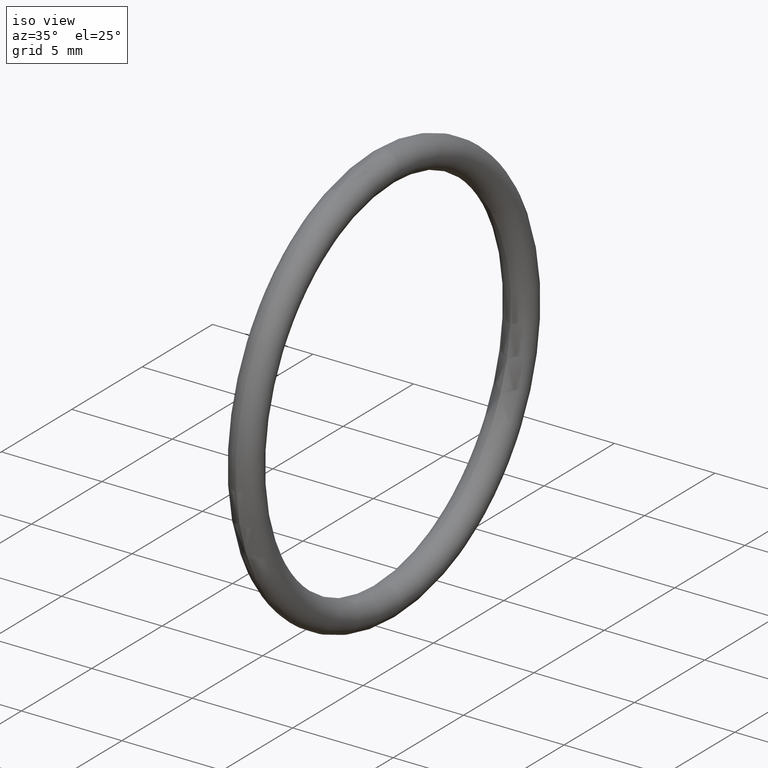
[diagram: clean part render]
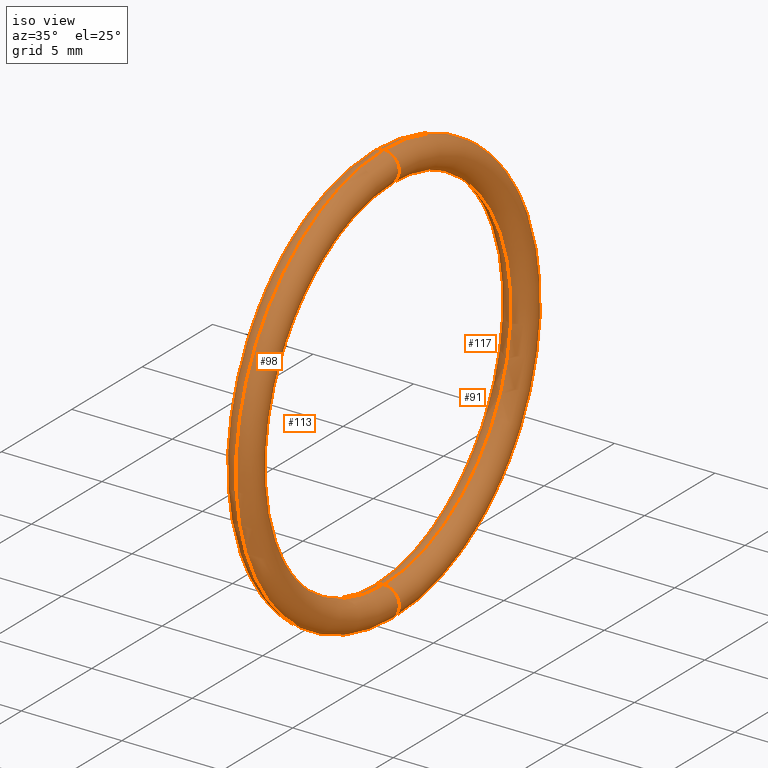
[diagram: same view with one multi-face feature highlighted, each face labeled with its STEP entity id]
A machine part, iso view. The highlighted faces form ONE feature: a constant-radius fillet chain: 4 tangent blend faces with common blend radius 0.762 mm. The faces share edges in the B-rep.
Their STEP definitions:
[1] entity #98 (Torus):
#60 = AXIS2_PLACEMENT_3D ( 'NONE', #63, #61, #62 ) ;
#61 = DIRECTION ( 'NONE',  ( 0.0000000000000000000, 1.000000000000000000, 1.224646799147353200E-016 ) ) ;
#62 = DIRECTION ( 'NONE',  ( 0.0000000000000000000, -1.224646799147352200E-016, 1.000000000000000000 ) ) ;
#63 = CARTESIAN_POINT ( 'NONE',  ( 0.1000000000000000600, 4.714890176717309300E-017, -0.3850000000000000100 ) ) ;
#83 = EDGE_CURVE ( 'NONE', #84, #85, #120, .T. ) ;
#84 = VERTEX_POINT ( 'NONE', #149 ) ;
#85 = VERTEX_POINT ( 'NONE', #163 ) ;
#86 = ORIENTED_EDGE ( 'NONE', *, *, #87, .T. ) ;
#87 = EDGE_CURVE ( 'NONE', #107, #88, #150, .T. ) ;
#88 = VERTEX_POINT ( 'NONE', #167 ) ;
#89 = ORIENTED_EDGE ( 'NONE', *, *, #90, .F. ) ;
#90 = EDGE_CURVE ( 'NONE', #85, #88, #161, .T. ) ;
#98 = ADVANCED_FACE ( 'NONE', ( #174 ), #141, .T. ) ;
#99 = ORIENTED_EDGE ( 'NONE', *, *, #83, .F. ) ;
#104 = EDGE_LOOP ( 'NONE', ( #99, #105, #86, #89 ) ) ;
#105 = ORIENTED_EDGE ( 'NONE', *, *, #106, .T. ) ;
#106 = EDGE_CURVE ( 'NONE', #84, #107, #182, .T. ) ;
#107 = VERTEX_POINT ( 'NONE', #136 ) ;
#120 = CIRCLE ( 'NONE', #60, 0.03000000000000002300 ) ;
#121 = CARTESIAN_POINT ( 'NONE',  ( 0.1000000000000000600, 0.0000000000000000000, 0.3850000000000000100 ) ) ;
#122 = AXIS2_PLACEMENT_3D ( 'NONE', #121, #124, #123 ) ;
#123 = DIRECTION ( 'NONE',  ( 0.0000000000000000000, 0.0000000000000000000, -1.000000000000000000 ) ) ;
#124 = DIRECTION ( 'NONE',  ( 0.0000000000000000000, -1.000000000000000000, 0.0000000000000000000 ) ) ;
#125 = DIRECTION ( 'NONE',  ( -1.000000000000000000, 0.0000000000000000000, 0.0000000000000000000 ) ) ;
#126 = CARTESIAN_POINT ( 'NONE',  ( 0.1000000000000000600, 0.0000000000000000000, 0.0000000000000000000 ) ) ;
#127 = AXIS2_PLACEMENT_3D ( 'NONE', #126, #125, #169 ) ;
#136 = CARTESIAN_POINT ( 'NONE',  ( 0.1000000000000000600, 0.0000000000000000000, 0.4150000000000000400 ) ) ;
#137 = DIRECTION ( 'NONE',  ( 0.0000000000000000000, 0.0000000000000000000, 1.000000000000000000 ) ) ;
#138 = DIRECTION ( 'NONE',  ( -1.000000000000000000, 0.0000000000000000000, 0.0000000000000000000 ) ) ;
#139 = DIRECTION ( 'NONE',  ( 0.0000000000000000000, 0.0000000000000000000, 1.000000000000000000 ) ) ;
#140 = AXIS2_PLACEMENT_3D ( 'NONE', #164, #165, #139 ) ;
#141 = TOROIDAL_SURFACE ( 'NONE', #140, 0.3850000000000000100, 0.03000000000000000900 ) ;
#149 = CARTESIAN_POINT ( 'NONE',  ( 0.1000000000000000600, 5.082284216461516300E-017, -0.4150000000000000400 ) ) ;
#150 = CIRCLE ( 'NONE', #122, 0.03000000000000002300 ) ;
#161 = CIRCLE ( 'NONE', #127, 0.3549999999999999800 ) ;
#163 = CARTESIAN_POINT ( 'NONE',  ( 0.1000000000000000600, 4.347496136973103500E-017, -0.3549999999999999800 ) ) ;
#164 = CARTESIAN_POINT ( 'NONE',  ( 0.1000000000000000600, 0.0000000000000000000, 0.0000000000000000000 ) ) ;
#165 = DIRECTION ( 'NONE',  ( -1.000000000000000000, 0.0000000000000000000, 0.0000000000000000000 ) ) ;
#167 = CARTESIAN_POINT ( 'NONE',  ( 0.1000000000000000600, 0.0000000000000000000, 0.3549999999999999800 ) ) ;
#169 = DIRECTION ( 'NONE',  ( 0.0000000000000000000, 0.0000000000000000000, 1.000000000000000000 ) ) ;
#174 = FACE_OUTER_BOUND ( 'NONE', #104, .T. ) ;
#180 = CARTESIAN_POINT ( 'NONE',  ( 0.1000000000000000600, 0.0000000000000000000, 0.0000000000000000000 ) ) ;
#181 = AXIS2_PLACEMENT_3D ( 'NONE', #180, #138, #137 ) ;
#182 = CIRCLE ( 'NONE', #181, 0.4150000000000000400 ) ;
[2] entity #113 (Torus):
#84 = VERTEX_POINT ( 'NONE', #149 ) ;
#85 = VERTEX_POINT ( 'NONE', #163 ) ;
#88 = VERTEX_POINT ( 'NONE', #167 ) ;
#90 = EDGE_CURVE ( 'NONE', #85, #88, #161, .T. ) ;
#95 = EDGE_CURVE ( 'NONE', #88, #107, #148, .T. ) ;
#100 = ORIENTED_EDGE ( 'NONE', *, *, #111, .F. ) ;
#101 = ORIENTED_EDGE ( 'NONE', *, *, #90, .T. ) ;
#103 = EDGE_LOOP ( 'NONE', ( #114, #100, #101, #112 ) ) ;
#106 = EDGE_CURVE ( 'NONE', #84, #107, #182, .T. ) ;
#107 = VERTEX_POINT ( 'NONE', #136 ) ;
#111 = EDGE_CURVE ( 'NONE', #85, #84, #128, .T. ) ;
#112 = ORIENTED_EDGE ( 'NONE', *, *, #95, .T. ) ;
#113 = ADVANCED_FACE ( 'NONE', ( #129 ), #191, .T. ) ;
#114 = ORIENTED_EDGE ( 'NONE', *, *, #106, .F. ) ;
#125 = DIRECTION ( 'NONE',  ( -1.000000000000000000, 0.0000000000000000000, 0.0000000000000000000 ) ) ;
#126 = CARTESIAN_POINT ( 'NONE',  ( 0.1000000000000000600, 0.0000000000000000000, 0.0000000000000000000 ) ) ;
#127 = AXIS2_PLACEMENT_3D ( 'NONE', #126, #125, #169 ) ;
#128 = CIRCLE ( 'NONE', #160, 0.03000000000000002300 ) ;
#129 = FACE_OUTER_BOUND ( 'NONE', #103, .T. ) ;
#135 = CARTESIAN_POINT ( 'NONE',  ( 0.1000000000000000600, 4.714890176717309300E-017, -0.3850000000000000100 ) ) ;
#136 = CARTESIAN_POINT ( 'NONE',  ( 0.1000000000000000600, 0.0000000000000000000, 0.4150000000000000400 ) ) ;
#137 = DIRECTION ( 'NONE',  ( 0.0000000000000000000, 0.0000000000000000000, 1.000000000000000000 ) ) ;
#138 = DIRECTION ( 'NONE',  ( -1.000000000000000000, 0.0000000000000000000, 0.0000000000000000000 ) ) ;
#142 = DIRECTION ( 'NONE',  ( 0.0000000000000000000, 0.0000000000000000000, -1.000000000000000000 ) ) ;
#143 = DIRECTION ( 'NONE',  ( 0.0000000000000000000, -1.000000000000000000, 0.0000000000000000000 ) ) ;
#147 = AXIS2_PLACEMENT_3D ( 'NONE', #151, #143, #142 ) ;
#148 = CIRCLE ( 'NONE', #147, 0.03000000000000002300 ) ;
#149 = CARTESIAN_POINT ( 'NONE',  ( 0.1000000000000000600, 5.082284216461516300E-017, -0.4150000000000000400 ) ) ;
#151 = CARTESIAN_POINT ( 'NONE',  ( 0.1000000000000000600, 0.0000000000000000000, 0.3850000000000000100 ) ) ;
#155 = CARTESIAN_POINT ( 'NONE',  ( 0.1000000000000000600, 0.0000000000000000000, 0.0000000000000000000 ) ) ;
#157 = DIRECTION ( 'NONE',  ( -1.000000000000000000, 0.0000000000000000000, 0.0000000000000000000 ) ) ;
#158 = DIRECTION ( 'NONE',  ( 0.0000000000000000000, -1.224646799147352200E-016, 1.000000000000000000 ) ) ;
#159 = DIRECTION ( 'NONE',  ( 0.0000000000000000000, 1.000000000000000000, 1.224646799147353200E-016 ) ) ;
#160 = AXIS2_PLACEMENT_3D ( 'NONE', #135, #159, #158 ) ;
#161 = CIRCLE ( 'NONE', #127, 0.3549999999999999800 ) ;
#163 = CARTESIAN_POINT ( 'NONE',  ( 0.1000000000000000600, 4.347496136973103500E-017, -0.3549999999999999800 ) ) ;
#167 = CARTESIAN_POINT ( 'NONE',  ( 0.1000000000000000600, 0.0000000000000000000, 0.3549999999999999800 ) ) ;
#169 = DIRECTION ( 'NONE',  ( 0.0000000000000000000, 0.0000000000000000000, 1.000000000000000000 ) ) ;
#180 = CARTESIAN_POINT ( 'NONE',  ( 0.1000000000000000600, 0.0000000000000000000, 0.0000000000000000000 ) ) ;
#181 = AXIS2_PLACEMENT_3D ( 'NONE', #180, #138, #137 ) ;
#182 = CIRCLE ( 'NONE', #181, 0.4150000000000000400 ) ;
#189 = DIRECTION ( 'NONE',  ( 0.0000000000000000000, 0.0000000000000000000, 1.000000000000000000 ) ) ;
#190 = AXIS2_PLACEMENT_3D ( 'NONE', #155, #157, #189 ) ;
#191 = TOROIDAL_SURFACE ( 'NONE', #190, 0.3850000000000000100, 0.03000000000000000900 ) ;
[3] entity #117 (Torus):
#84 = VERTEX_POINT ( 'NONE', #149 ) ;
#85 = VERTEX_POINT ( 'NONE', #163 ) ;
#88 = VERTEX_POINT ( 'NONE', #167 ) ;
#94 = ORIENTED_EDGE ( 'NONE', *, *, #95, .F. ) ;
#95 = EDGE_CURVE ( 'NONE', #88, #107, #148, .T. ) ;
#96 = ORIENTED_EDGE ( 'NONE', *, *, #108, .F. ) ;
#97 = EDGE_CURVE ( 'NONE', #88, #85, #173, .T. ) ;
#107 = VERTEX_POINT ( 'NONE', #136 ) ;
#108 = EDGE_CURVE ( 'NONE', #107, #84, #134, .T. ) ;
#109 = ORIENTED_EDGE ( 'NONE', *, *, #97, .T. ) ;
#110 = ORIENTED_EDGE ( 'NONE', *, *, #111, .T. ) ;
#111 = EDGE_CURVE ( 'NONE', #85, #84, #128, .T. ) ;
#117 = ADVANCED_FACE ( 'NONE', ( #156 ), #188, .T. ) ;
#118 = EDGE_LOOP ( 'NONE', ( #96, #94, #109, #110 ) ) ;
#128 = CIRCLE ( 'NONE', #160, 0.03000000000000002300 ) ;
#130 = DIRECTION ( 'NONE',  ( 0.0000000000000000000, 0.0000000000000000000, 1.000000000000000000 ) ) ;
#131 = DIRECTION ( 'NONE',  ( -1.000000000000000000, 0.0000000000000000000, 0.0000000000000000000 ) ) ;
#132 = CARTESIAN_POINT ( 'NONE',  ( 0.1000000000000000600, 0.0000000000000000000, 0.0000000000000000000 ) ) ;
#133 = AXIS2_PLACEMENT_3D ( 'NONE', #132, #131, #130 ) ;
#134 = CIRCLE ( 'NONE', #133, 0.4150000000000000400 ) ;
#135 = CARTESIAN_POINT ( 'NONE',  ( 0.1000000000000000600, 4.714890176717309300E-017, -0.3850000000000000100 ) ) ;
#136 = CARTESIAN_POINT ( 'NONE',  ( 0.1000000000000000600, 0.0000000000000000000, 0.4150000000000000400 ) ) ;
#142 = DIRECTION ( 'NONE',  ( 0.0000000000000000000, 0.0000000000000000000, -1.000000000000000000 ) ) ;
#143 = DIRECTION ( 'NONE',  ( 0.0000000000000000000, -1.000000000000000000, 0.0000000000000000000 ) ) ;
#147 = AXIS2_PLACEMENT_3D ( 'NONE', #151, #143, #142 ) ;
#148 = CIRCLE ( 'NONE', #147, 0.03000000000000002300 ) ;
#149 = CARTESIAN_POINT ( 'NONE',  ( 0.1000000000000000600, 5.082284216461516300E-017, -0.4150000000000000400 ) ) ;
#151 = CARTESIAN_POINT ( 'NONE',  ( 0.1000000000000000600, 0.0000000000000000000, 0.3850000000000000100 ) ) ;
#156 = FACE_OUTER_BOUND ( 'NONE', #118, .T. ) ;
#158 = DIRECTION ( 'NONE',  ( 0.0000000000000000000, -1.224646799147352200E-016, 1.000000000000000000 ) ) ;
#159 = DIRECTION ( 'NONE',  ( 0.0000000000000000000, 1.000000000000000000, 1.224646799147353200E-016 ) ) ;
#160 = AXIS2_PLACEMENT_3D ( 'NONE', #135, #159, #158 ) ;
#163 = CARTESIAN_POINT ( 'NONE',  ( 0.1000000000000000600, 4.347496136973103500E-017, -0.3549999999999999800 ) ) ;
#166 = DIRECTION ( 'NONE',  ( 0.0000000000000000000, 0.0000000000000000000, 1.000000000000000000 ) ) ;
#167 = CARTESIAN_POINT ( 'NONE',  ( 0.1000000000000000600, 0.0000000000000000000, 0.3549999999999999800 ) ) ;
#170 = DIRECTION ( 'NONE',  ( -1.000000000000000000, 0.0000000000000000000, 0.0000000000000000000 ) ) ;
#171 = CARTESIAN_POINT ( 'NONE',  ( 0.1000000000000000600, 0.0000000000000000000, 0.0000000000000000000 ) ) ;
#172 = AXIS2_PLACEMENT_3D ( 'NONE', #171, #170, #166 ) ;
#173 = CIRCLE ( 'NONE', #172, 0.3549999999999999800 ) ;
#184 = DIRECTION ( 'NONE',  ( 0.0000000000000000000, 0.0000000000000000000, 1.000000000000000000 ) ) ;
#185 = DIRECTION ( 'NONE',  ( -1.000000000000000000, 0.0000000000000000000, 0.0000000000000000000 ) ) ;
#186 = CARTESIAN_POINT ( 'NONE',  ( 0.1000000000000000600, 0.0000000000000000000, 0.0000000000000000000 ) ) ;
#187 = AXIS2_PLACEMENT_3D ( 'NONE', #186, #185, #184 ) ;
#188 = TOROIDAL_SURFACE ( 'NONE', #187, 0.3850000000000000100, 0.03000000000000000900 ) ;
[4] entity #91 (Torus):
#60 = AXIS2_PLACEMENT_3D ( 'NONE', #63, #61, #62 ) ;
#61 = DIRECTION ( 'NONE',  ( 0.0000000000000000000, 1.000000000000000000, 1.224646799147353200E-016 ) ) ;
#62 = DIRECTION ( 'NONE',  ( 0.0000000000000000000, -1.224646799147352200E-016, 1.000000000000000000 ) ) ;
#63 = CARTESIAN_POINT ( 'NONE',  ( 0.1000000000000000600, 4.714890176717309300E-017, -0.3850000000000000100 ) ) ;
#83 = EDGE_CURVE ( 'NONE', #84, #85, #120, .T. ) ;
#84 = VERTEX_POINT ( 'NONE', #149 ) ;
#85 = VERTEX_POINT ( 'NONE', #163 ) ;
#87 = EDGE_CURVE ( 'NONE', #107, #88, #150, .T. ) ;
#88 = VERTEX_POINT ( 'NONE', #167 ) ;
#91 = ADVANCED_FACE ( 'NONE', ( #162 ), #183, .T. ) ;
#92 = EDGE_LOOP ( 'NONE', ( #119, #93, #116, #115 ) ) ;
#93 = ORIENTED_EDGE ( 'NONE', *, *, #108, .T. ) ;
#97 = EDGE_CURVE ( 'NONE', #88, #85, #173, .T. ) ;
#107 = VERTEX_POINT ( 'NONE', #136 ) ;
#108 = EDGE_CURVE ( 'NONE', #107, #84, #134, .T. ) ;
#115 = ORIENTED_EDGE ( 'NONE', *, *, #97, .F. ) ;
#116 = ORIENTED_EDGE ( 'NONE', *, *, #83, .T. ) ;
#119 = ORIENTED_EDGE ( 'NONE', *, *, #87, .F. ) ;
#120 = CIRCLE ( 'NONE', #60, 0.03000000000000002300 ) ;
#121 = CARTESIAN_POINT ( 'NONE',  ( 0.1000000000000000600, 0.0000000000000000000, 0.3850000000000000100 ) ) ;
#122 = AXIS2_PLACEMENT_3D ( 'NONE', #121, #124, #123 ) ;
#123 = DIRECTION ( 'NONE',  ( 0.0000000000000000000, 0.0000000000000000000, -1.000000000000000000 ) ) ;
#124 = DIRECTION ( 'NONE',  ( 0.0000000000000000000, -1.000000000000000000, 0.0000000000000000000 ) ) ;
#130 = DIRECTION ( 'NONE',  ( 0.0000000000000000000, 0.0000000000000000000, 1.000000000000000000 ) ) ;
#131 = DIRECTION ( 'NONE',  ( -1.000000000000000000, 0.0000000000000000000, 0.0000000000000000000 ) ) ;
#132 = CARTESIAN_POINT ( 'NONE',  ( 0.1000000000000000600, 0.0000000000000000000, 0.0000000000000000000 ) ) ;
#133 = AXIS2_PLACEMENT_3D ( 'NONE', #132, #131, #130 ) ;
#134 = CIRCLE ( 'NONE', #133, 0.4150000000000000400 ) ;
#136 = CARTESIAN_POINT ( 'NONE',  ( 0.1000000000000000600, 0.0000000000000000000, 0.4150000000000000400 ) ) ;
#149 = CARTESIAN_POINT ( 'NONE',  ( 0.1000000000000000600, 5.082284216461516300E-017, -0.4150000000000000400 ) ) ;
#150 = CIRCLE ( 'NONE', #122, 0.03000000000000002300 ) ;
#152 = DIRECTION ( 'NONE',  ( 0.0000000000000000000, 0.0000000000000000000, 1.000000000000000000 ) ) ;
#153 = DIRECTION ( 'NONE',  ( -1.000000000000000000, 0.0000000000000000000, 0.0000000000000000000 ) ) ;
#154 = AXIS2_PLACEMENT_3D ( 'NONE', #168, #153, #152 ) ;
#162 = FACE_OUTER_BOUND ( 'NONE', #92, .T. ) ;
#163 = CARTESIAN_POINT ( 'NONE',  ( 0.1000000000000000600, 4.347496136973103500E-017, -0.3549999999999999800 ) ) ;
#166 = DIRECTION ( 'NONE',  ( 0.0000000000000000000, 0.0000000000000000000, 1.000000000000000000 ) ) ;
#167 = CARTESIAN_POINT ( 'NONE',  ( 0.1000000000000000600, 0.0000000000000000000, 0.3549999999999999800 ) ) ;
#168 = CARTESIAN_POINT ( 'NONE',  ( 0.1000000000000000600, 0.0000000000000000000, 0.0000000000000000000 ) ) ;
#170 = DIRECTION ( 'NONE',  ( -1.000000000000000000, 0.0000000000000000000, 0.0000000000000000000 ) ) ;
#171 = CARTESIAN_POINT ( 'NONE',  ( 0.1000000000000000600, 0.0000000000000000000, 0.0000000000000000000 ) ) ;
#172 = AXIS2_PLACEMENT_3D ( 'NONE', #171, #170, #166 ) ;
#173 = CIRCLE ( 'NONE', #172, 0.3549999999999999800 ) ;
#183 = TOROIDAL_SURFACE ( 'NONE', #154, 0.3850000000000000100, 0.03000000000000000900 ) ;